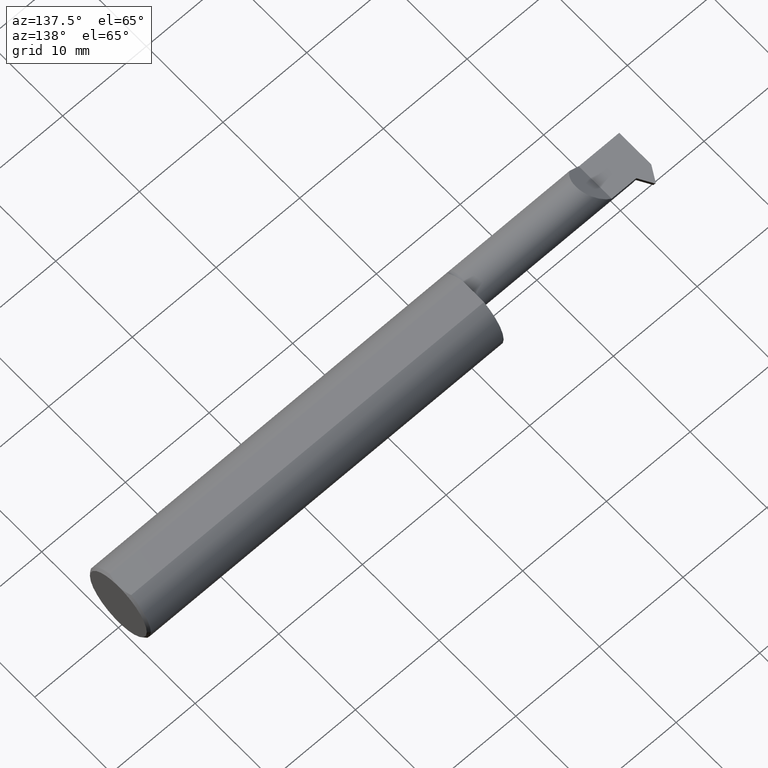
[diagram: clean part render]
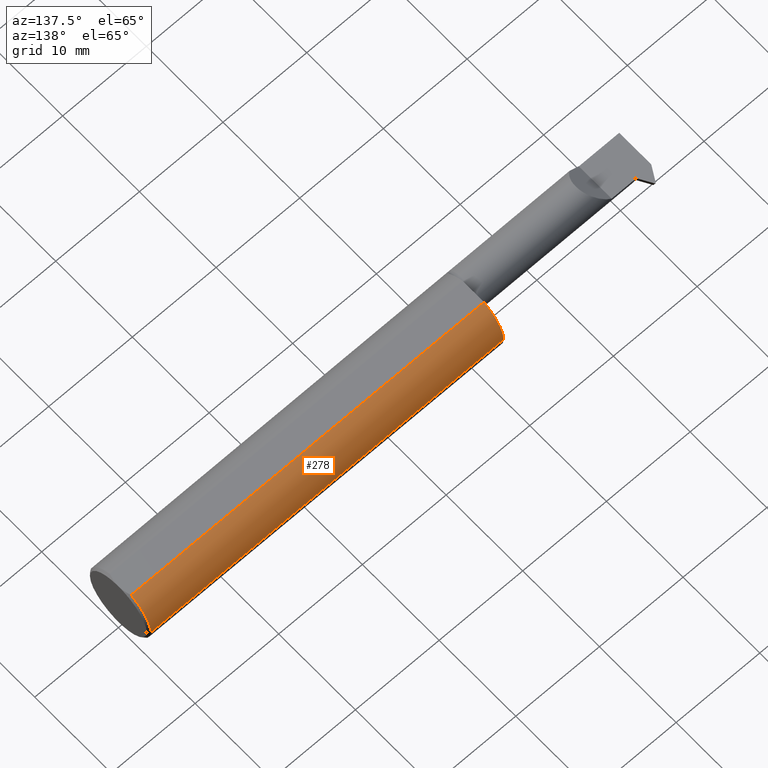
[diagram: same view with one face highlighted and labeled with its STEP entity id]
A machine part, auxiliary view. The second image highlights one B-rep face of the part: STEP entity #278.
In plain terms, the highlighted cylindrical surface (partial cylindrical patch) has radius 3.9649 mm, axis along (1, 0, -0).
Its self-contained STEP definition (entity closure, byte-faithful):
#5 = EDGE_LOOP ( 'NONE', ( #803, #243, #349, #690 ) ) ;
#16 = CARTESIAN_POINT ( 'NONE',  ( -1.669999999999999929, 0.1561000000000000443, 0.000000000000000000 ) ) ;
#29 = VERTEX_POINT ( 'NONE', #597 ) ;
#43 = CARTESIAN_POINT ( 'NONE',  ( -1.669999999999999929, 4.041334437186263414E-17, 0.000000000000000000 ) ) ;
#106 = CIRCLE ( 'NONE', #659, 0.1561000000000000165 ) ;
#131 = DIRECTION ( 'NONE',  ( 0.000000000000000000, -1.000000000000000000, -1.776356839400250465E-15 ) ) ;
#168 = CARTESIAN_POINT ( 'NONE',  ( -2.500000000000000000, -6.123233995736767268E-17, 0.000000000000000000 ) ) ;
#206 = CARTESIAN_POINT ( 'NONE',  ( -0.009999999999999073866, 2.437047130303233649E-16, 0.000000000000000000 ) ) ;
#216 = EDGE_CURVE ( 'NONE', #694, #525, #335, .T. ) ;
#229 = EDGE_CURVE ( 'NONE', #694, #29, #408, .T. ) ;
#243 = ORIENTED_EDGE ( 'NONE', *, *, #526, .T. ) ;
#268 = AXIS2_PLACEMENT_3D ( 'NONE', #168, #774, #294 ) ;
#278 = ADVANCED_FACE ( 'NONE', ( #836 ), #492, .T. ) ;
#294 = DIRECTION ( 'NONE',  ( 0.000000000000000000, 1.000000000000000000, 0.000000000000000000 ) ) ;
#323 = DIRECTION ( 'NONE',  ( 1.000000000000000000, 1.224646799147352961E-16, -0.000000000000000000 ) ) ;
#335 = CIRCLE ( 'NONE', #422, 0.1561000000000000165 ) ;
#338 = VECTOR ( 'NONE', #323, 39.37007874015748143 ) ;
#349 = ORIENTED_EDGE ( 'NONE', *, *, #229, .F. ) ;
#408 = LINE ( 'NONE', #484, #519 ) ;
#422 = AXIS2_PLACEMENT_3D ( 'NONE', #206, #478, #750 ) ;
#458 = LINE ( 'NONE', #790, #338 ) ;
#478 = DIRECTION ( 'NONE',  ( -1.000000000000000000, -1.224646799147319927E-16, 0.000000000000000000 ) ) ;
#484 = CARTESIAN_POINT ( 'NONE',  ( -2.500000000000000000, 0.05497272050753895106, 0.1461000000000000076 ) ) ;
#487 = EDGE_CURVE ( 'NONE', #764, #525, #458, .T. ) ;
#492 = CYLINDRICAL_SURFACE ( 'NONE', #268, 0.1561000000000000165 ) ;
#519 = VECTOR ( 'NONE', #689, 39.37007874015748143 ) ;
#525 = VERTEX_POINT ( 'NONE', #654 ) ;
#526 = EDGE_CURVE ( 'NONE', #764, #29, #106, .T. ) ;
#597 = CARTESIAN_POINT ( 'NONE',  ( -1.669999999999999929, 0.05497272050753924943, 0.1461000000000000354 ) ) ;
#654 = CARTESIAN_POINT ( 'NONE',  ( -0.009999999999999092948, 0.1561000000000002386, 0.000000000000000000 ) ) ;
#659 = AXIS2_PLACEMENT_3D ( 'NONE', #43, #739, #131 ) ;
#689 = DIRECTION ( 'NONE',  ( -1.000000000000000000, -1.224646799147352961E-16, 0.000000000000000000 ) ) ;
#690 = ORIENTED_EDGE ( 'NONE', *, *, #216, .T. ) ;
#694 = VERTEX_POINT ( 'NONE', #839 ) ;
#739 = DIRECTION ( 'NONE',  ( 1.000000000000000000, 1.301231752219315598E-17, 0.000000000000000000 ) ) ;
#750 = DIRECTION ( 'NONE',  ( -1.230512889522860364E-16, 1.000000000000000000, 0.000000000000000000 ) ) ;
#764 = VERTEX_POINT ( 'NONE', #16 ) ;
#774 = DIRECTION ( 'NONE',  ( 1.000000000000000000, 1.224646799147352961E-16, -0.000000000000000000 ) ) ;
#790 = CARTESIAN_POINT ( 'NONE',  ( -2.500000000000000000, 0.1560999999999999333, 0.000000000000000000 ) ) ;
#803 = ORIENTED_EDGE ( 'NONE', *, *, #487, .F. ) ;
#836 = FACE_OUTER_BOUND ( 'NONE', #5, .T. ) ;
#839 = CARTESIAN_POINT ( 'NONE',  ( -0.009999999999999073866, 0.05497272050753925637, 0.1461000000000000076 ) ) ;